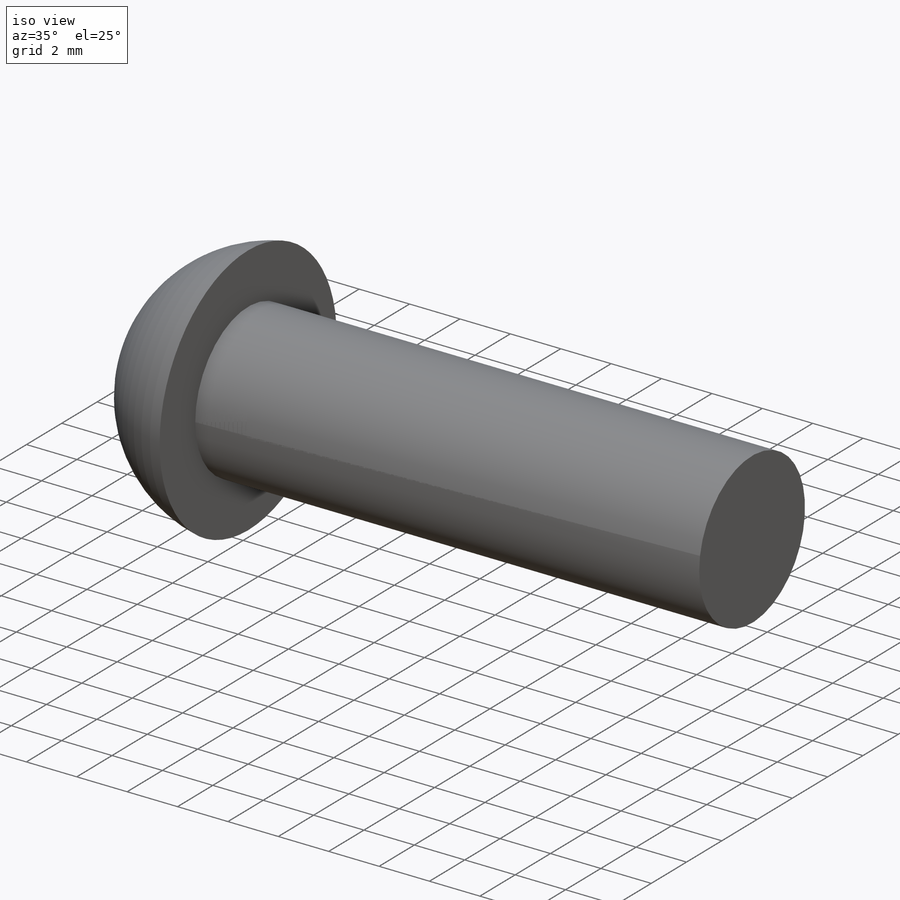
[diagram: iso view]
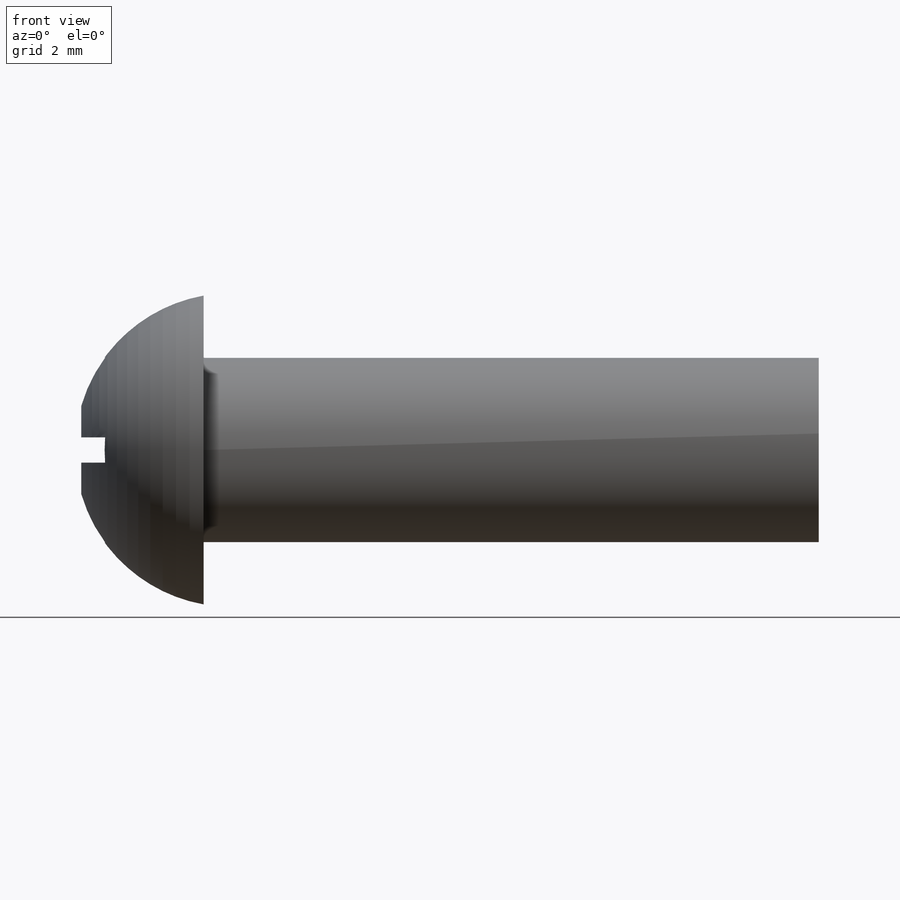
[diagram: front view]
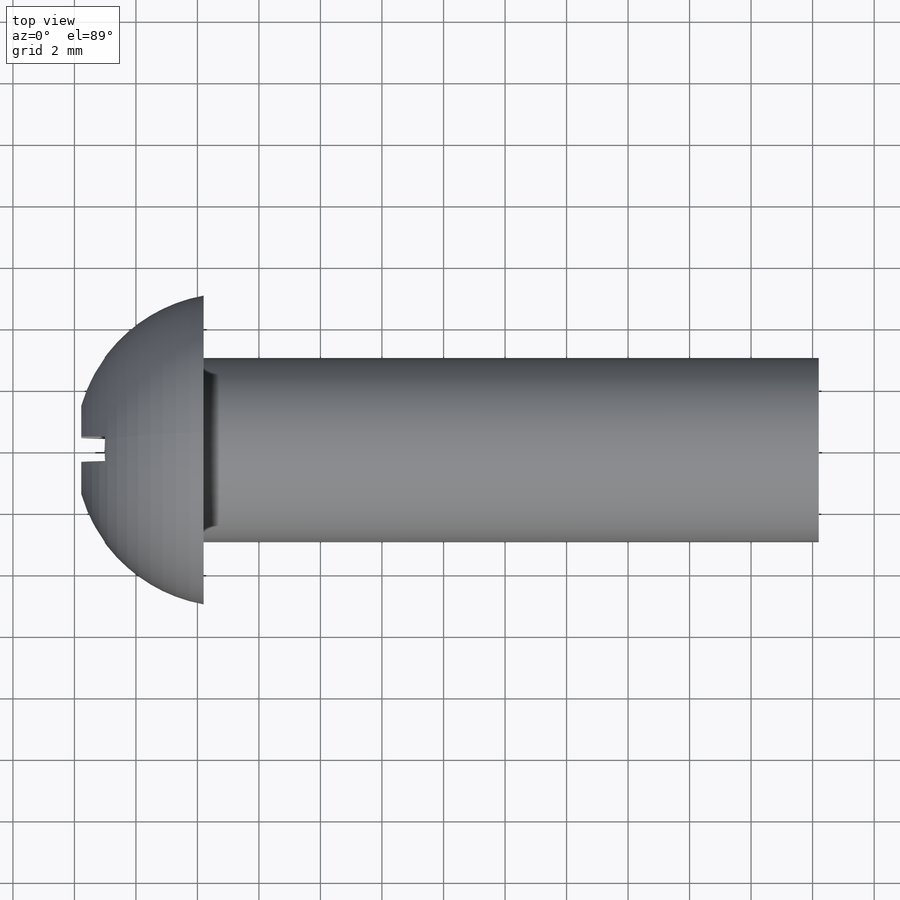
[diagram: top view]
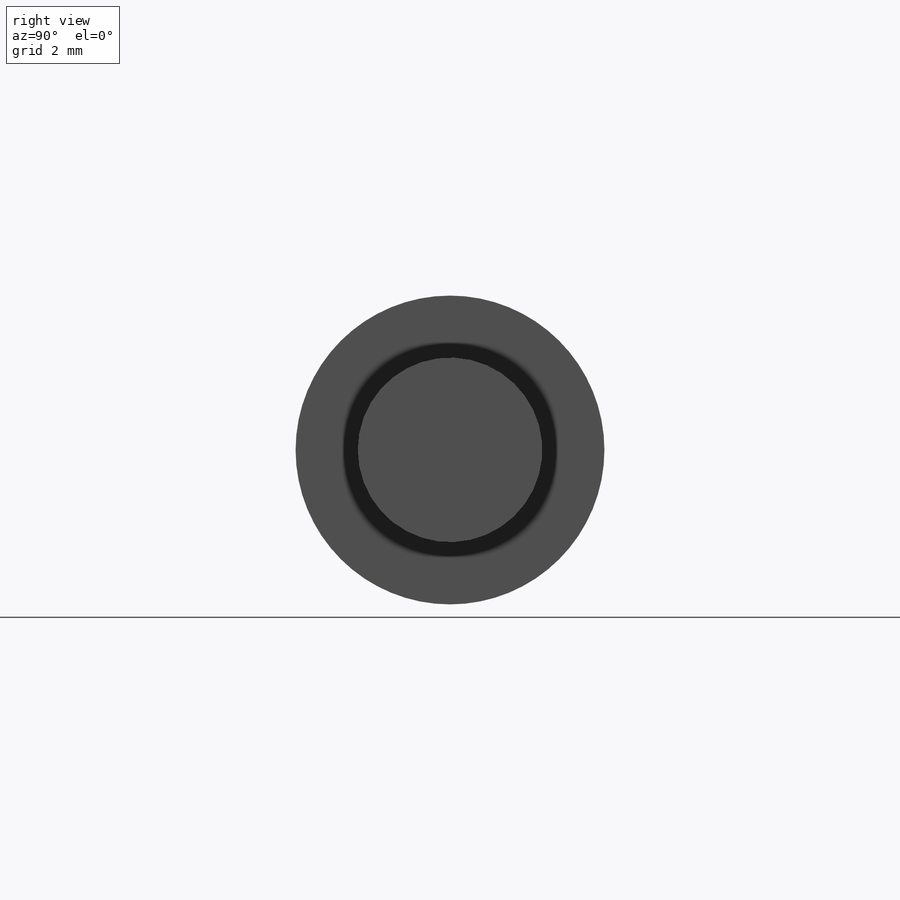
[diagram: right view]
SOLIDWORKS PART (.sldprt)
format: sldprt  version: not decoded by parser v0  size: 1,797,120 bytes
history: native  units: mm
features: sketch x5, plane x4, cut_revolve x4, material x1, revolve x1, thread x1, pattern_circular x1, cut_extrude x1 (+10 scaffold rows collapsed; 1 parser-record rows omitted)
feature tree (29):
  scaffold x10  (default folders/planes/origin — collapsed)
  material  "Материал <не указан>"
  plane  "Plane1"
  plane  "Plane2"
  plane  "Plane3"
  parser-record x1  (decoder bookkeeping rows leaked as tree rows — omitted from the tree; the rows remain in map.json)
  sketch  "BodySke"  dims[c1.Head_fillet_rad=3.6322mm c1.Head_crown_rad=5.1mm c2.Head_fillet_rad=0.9mm c2.D1=~7.099516mm c2.Head_ang=85.0deg c2.Oval_ht=2.3876mm c2.Head_ht=6.1976mm c2.Diameter=10.0mm c2.Length=76.2mm c2.Head_dia=20.0152mm c3.Head_dia=15.3924mm c3.Head_ht=8.509mm c3.Length=20.0mm c3.Head_side_ht=6.1722mm c4.Head_ht=5.1562mm c4.Head_dia=18.4912mm c5.Head_ht=7.5mm c5.Head_dia=20.0mm c5.Advance=1.5mm c5.Thread_nom=18.0mm c5.Thread_lim=~37.30625mm c5.Diameter=6.0mm c6.Head_dia=~10.03992mm c6.Head_ht=4.2mm c6.Advance=1.0mm]
  revolve  "Base-Revolve"  [1 undecoded]
  thread  "ThreadCosmetic"  Diameter=18mm Thread_length=18mm Thread_minor=4.891mm  [1 undecoded]
  sketch  "Sketch3"  dims[Cross_dia=7.0mm D1=3.5mm Cross_width=0.82mm D2=0.41mm]
  plane  "Plane4"  Offset=3.2mm Cross_depth=3.2mm
  sketch  "Sketch4"  dims[D1=0.82mm D2=~3.809078mm D3=0.41mm D4=~1.904539mm]
  pattern_circular  "RecPat"  Count=2 Angle=90deg
  sketch  "RecCorSke"  dims[c1.Diameter=2.561mm c1.Depth=3.2mm c1.D1=~7.118754mm c1.Draft_angle=4.0deg c2.D1=3.175mm c2.Bottom_angle=18.0deg]
  cut_revolve  "RecessCore"  Angle=360deg
  cut_revolve  "ConfigurationName"  CopiedFlag=0  [1 undecoded]
  cut_revolve  "PartNumberID"  [1 undecoded]
  cut_revolve  "ConfigurationName"  CopiedFlag=0  [1 undecoded]
  sketch  "Sketch5"  dims[Slot_width=1.8mm]
  cut_extrude  "Slot"  Depth=2.5mm
decode coverage: 11 of 13 modeling features carry decoded parameters
note: ~ marks probable driven/reference dimensions
note: 5 parameter values undecoded
summary: no parameter record found for 4 features
note: suppression state not decoded; provenance and decode notes live in map.json
